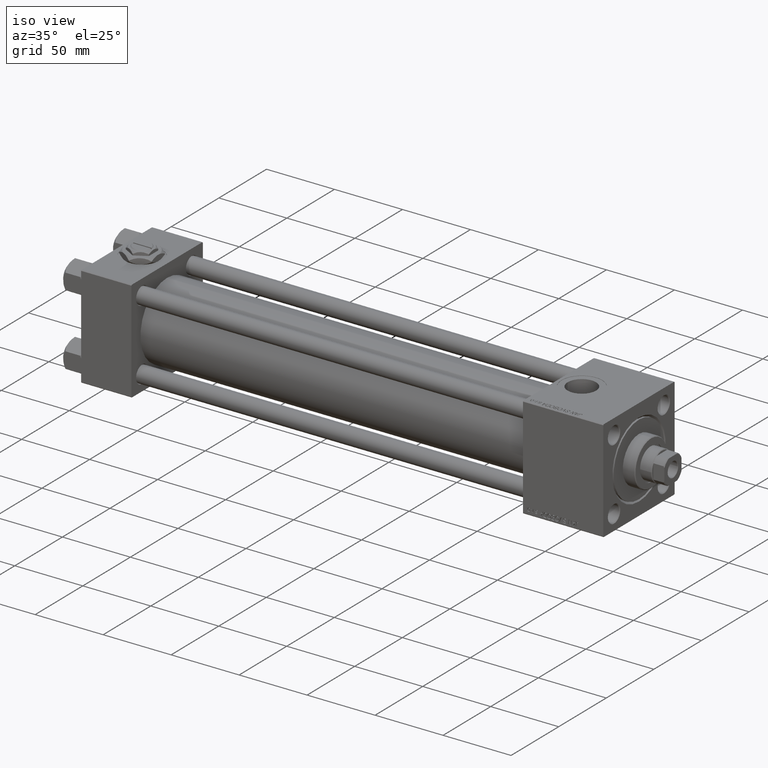
[diagram: clean part render]
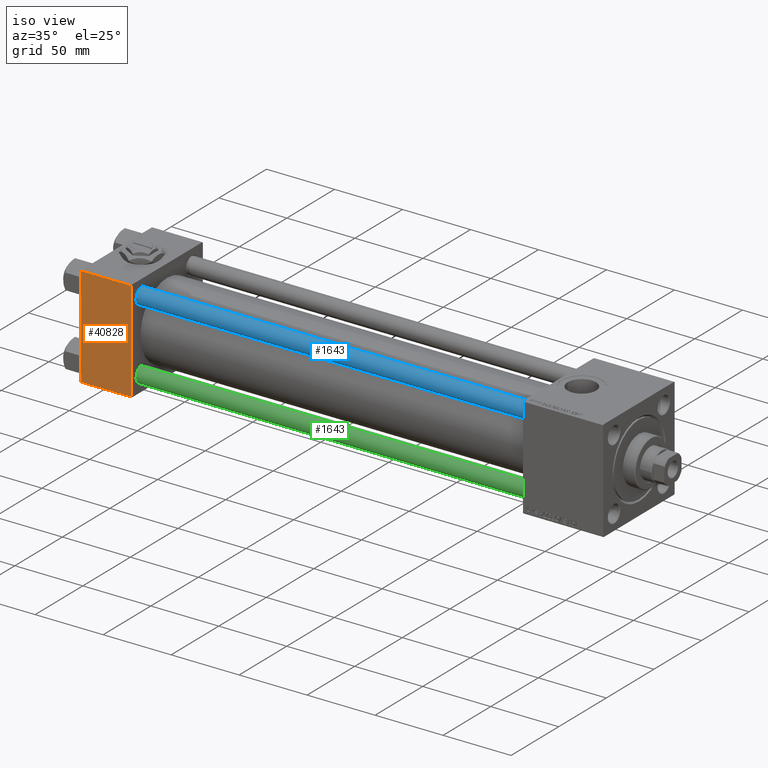
[diagram: same view with three faces highlighted in distinct colors, each labeled with its STEP entity id]
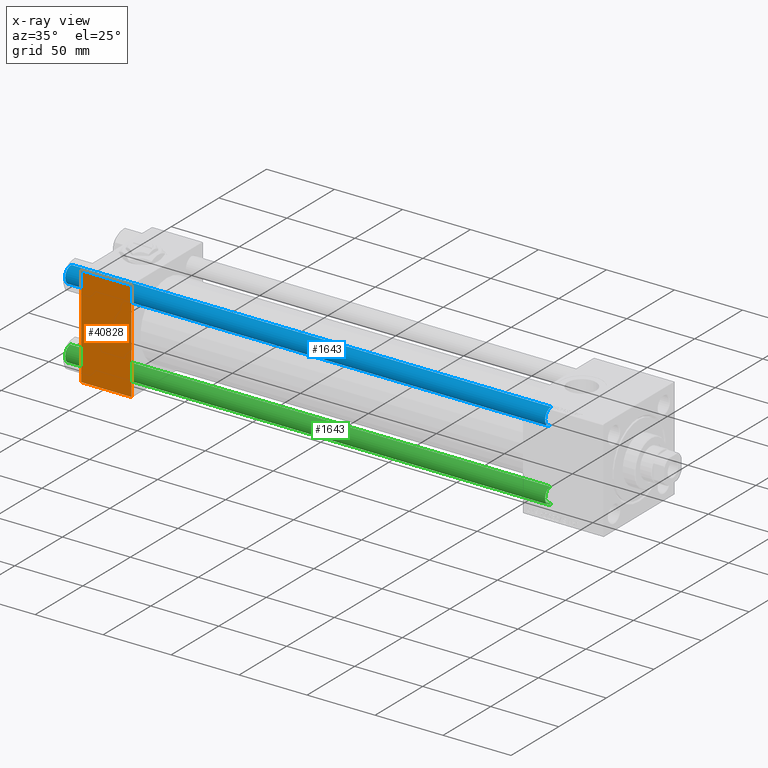
[diagram: x-ray of the same camera — body ghosted, the three highlighted faces saturated]
A machine part, iso view with three faces highlighted in distinct colors.
The next image is the same camera in x-ray (body ghosted, the three faces saturated) — at least one of them is partly hidden behind the body in this view.
Their STEP definitions:

[orange] entity #40828 — the highlighted planar face has unit normal (0, 1, 0).
#1553 = EDGE_CURVE ( 'NONE', #22380, #40141, #11570, .T. ) ;
#2121 = EDGE_CURVE ( 'NONE', #32653, #40141, #35903, .T. ) ;
#3422 = DIRECTION ( 'NONE',  ( -0.000000000000000000, 1.000000000000000000, 9.251858538542971581E-17 ) ) ;
#7612 = DIRECTION ( 'NONE',  ( 0.000000000000000000, 9.251858538542971581E-17, -1.000000000000000000 ) ) ;
#11570 = LINE ( 'NONE', #27673, #45653 ) ;
#11609 = CARTESIAN_POINT ( 'NONE',  ( 37.00000000000000000, -37.50000000000000000, -37.00000000000003553 ) ) ;
#12839 = ORIENTED_EDGE ( 'NONE', *, *, #40832, .T. ) ;
#15847 = LINE ( 'NONE', #24275, #32322 ) ;
#16777 = CARTESIAN_POINT ( 'NONE',  ( 0.000000000000000000, -37.50000000000000000, -37.00000000000003553 ) ) ;
#17238 = ORIENTED_EDGE ( 'NONE', *, *, #1553, .F. ) ;
#20493 = AXIS2_PLACEMENT_3D ( 'NONE', #47544, #3422, #35405 ) ;
#22380 = VERTEX_POINT ( 'NONE', #32462 ) ;
#22686 = EDGE_CURVE ( 'NONE', #47185, #32653, #28291, .T. ) ;
#24275 = CARTESIAN_POINT ( 'NONE',  ( 37.00000000000000000, -37.50000000000000711, 36.99999999999999289 ) ) ;
#24953 = VECTOR ( 'NONE', #27714, 1000.000000000000000 ) ;
#25157 = ORIENTED_EDGE ( 'NONE', *, *, #2121, .T. ) ;
#26512 = CARTESIAN_POINT ( 'NONE',  ( 37.00000000000000000, -37.50000000000000000, -37.00000000000003553 ) ) ;
#27673 = CARTESIAN_POINT ( 'NONE',  ( 37.00000000000000000, -37.50000000000000711, 37.49999999999999289 ) ) ;
#27714 = DIRECTION ( 'NONE',  ( 1.000000000000000000, 0.000000000000000000, 0.000000000000000000 ) ) ;
#27727 = PLANE ( 'NONE',  #20493 ) ;
#28291 = LINE ( 'NONE', #31743, #30262 ) ;
#30209 = EDGE_LOOP ( 'NONE', ( #49419, #25157, #17238, #12839 ) ) ;
#30262 = VECTOR ( 'NONE', #48113, 1000.000000000000000 ) ;
#31743 = CARTESIAN_POINT ( 'NONE',  ( 0.000000000000000000, -37.50000000000000711, 37.49999999999999289 ) ) ;
#31965 = DIRECTION ( 'NONE',  ( -1.000000000000000000, 0.000000000000000000, 0.000000000000000000 ) ) ;
#32322 = VECTOR ( 'NONE', #31965, 1000.000000000000000 ) ;
#32462 = CARTESIAN_POINT ( 'NONE',  ( 37.00000000000000000, -37.50000000000000711, 36.99999999999999289 ) ) ;
#32653 = VERTEX_POINT ( 'NONE', #16777 ) ;
#35405 = DIRECTION ( 'NONE',  ( 0.000000000000000000, -9.251858538542971581E-17, 1.000000000000000000 ) ) ;
#35903 = LINE ( 'NONE', #11609, #24953 ) ;
#39625 = FACE_OUTER_BOUND ( 'NONE', #30209, .T. ) ;
#40141 = VERTEX_POINT ( 'NONE', #26512 ) ;
#40828 = ADVANCED_FACE ( 'NONE', ( #39625 ), #27727, .F. ) ;
#40832 = EDGE_CURVE ( 'NONE', #22380, #47185, #15847, .T. ) ;
#44007 = CARTESIAN_POINT ( 'NONE',  ( 0.000000000000000000, -37.50000000000000711, 36.99999999999999289 ) ) ;
#45653 = VECTOR ( 'NONE', #7612, 1000.000000000000000 ) ;
#47185 = VERTEX_POINT ( 'NONE', #44007 ) ;
#47544 = CARTESIAN_POINT ( 'NONE',  ( 37.00000000000000000, -37.50000000000000711, 37.49999999999999289 ) ) ;
#48113 = DIRECTION ( 'NONE',  ( 0.000000000000000000, 9.251858538542971581E-17, -1.000000000000000000 ) ) ;
#49419 = ORIENTED_EDGE ( 'NONE', *, *, #22686, .T. ) ;

[blue] entity #1643 — the highlighted cylindrical surface (edge-blend (fillet) strip) has radius 6 mm, axis along (1, 0, -0).
#719 = FACE_OUTER_BOUND ( 'NONE', #51264, .T. ) ;
#1643 = ADVANCED_FACE ( 'NONE', ( #719 ), #49326, .T. ) ;
#1837 = VERTEX_POINT ( 'NONE', #5107 ) ;
#3587 = VERTEX_POINT ( 'NONE', #50555 ) ;
#5097 = ORIENTED_EDGE ( 'NONE', *, *, #22629, .T. ) ;
#5107 = CARTESIAN_POINT ( 'NONE',  ( 6.000000000000000888, 7.347880794884120722E-16, 0.5000000000000559552 ) ) ;
#5781 = CIRCLE ( 'NONE', #12531, 6.000000000000000888 ) ;
#7557 = VECTOR ( 'NONE', #15124, 1000.000000000000000 ) ;
#7670 = VECTOR ( 'NONE', #11720, 1000.000000000000000 ) ;
#8394 = DIRECTION ( 'NONE',  ( -1.000000000000000000, 0.000000000000000000, 0.000000000000000000 ) ) ;
#11720 = DIRECTION ( 'NONE',  ( -0.000000000000000000, -0.000000000000000000, -1.000000000000000000 ) ) ;
#11782 = CARTESIAN_POINT ( 'NONE',  ( -6.000000000000000888, 0.000000000000000000, 0.5000000000000559552 ) ) ;
#12088 = EDGE_CURVE ( 'NONE', #3587, #48065, #27379, .T. ) ;
#12365 = VERTEX_POINT ( 'NONE', #11782 ) ;
#12531 = AXIS2_PLACEMENT_3D ( 'NONE', #34419, #22758, #50532 ) ;
#13936 = DIRECTION ( 'NONE',  ( 1.000000000000000000, 0.000000000000000000, 0.000000000000000000 ) ) ;
#14425 = ORIENTED_EDGE ( 'NONE', *, *, #30551, .T. ) ;
#15124 = DIRECTION ( 'NONE',  ( -0.000000000000000000, -0.000000000000000000, -1.000000000000000000 ) ) ;
#16569 = DIRECTION ( 'NONE',  ( -0.000000000000000000, -0.000000000000000000, -1.000000000000000000 ) ) ;
#18556 = LINE ( 'NONE', #26493, #7557 ) ;
#19071 = ORIENTED_EDGE ( 'NONE', *, *, #12088, .T. ) ;
#22629 = EDGE_CURVE ( 'NONE', #1837, #12365, #5781, .T. ) ;
#22758 = DIRECTION ( 'NONE',  ( -0.000000000000000000, -0.000000000000000000, 1.000000000000000000 ) ) ;
#22813 = LINE ( 'NONE', #34991, #7670 ) ;
#22855 = AXIS2_PLACEMENT_3D ( 'NONE', #25012, #16569, #8394 ) ;
#24858 = AXIS2_PLACEMENT_3D ( 'NONE', #34011, #50123, #13936 ) ;
#25012 = CARTESIAN_POINT ( 'NONE',  ( 0.000000000000000000, 0.000000000000000000, 354.0000000000000000 ) ) ;
#26493 = CARTESIAN_POINT ( 'NONE',  ( -6.000000000000000888, 0.000000000000000000, 354.0000000000000000 ) ) ;
#27379 = CIRCLE ( 'NONE', #24858, 6.000000000000000888 ) ;
#27420 = EDGE_CURVE ( 'NONE', #3587, #12365, #18556, .T. ) ;
#30551 = EDGE_CURVE ( 'NONE', #48065, #1837, #22813, .T. ) ;
#34011 = CARTESIAN_POINT ( 'NONE',  ( 0.000000000000000000, 0.000000000000000000, 353.5000000000000000 ) ) ;
#34419 = CARTESIAN_POINT ( 'NONE',  ( 0.000000000000000000, 0.000000000000000000, 0.5000000000000559552 ) ) ;
#34991 = CARTESIAN_POINT ( 'NONE',  ( 6.000000000000000888, 7.347880794884120722E-16, 354.0000000000000000 ) ) ;
#38564 = ORIENTED_EDGE ( 'NONE', *, *, #27420, .F. ) ;
#40052 = CARTESIAN_POINT ( 'NONE',  ( 6.000000000000000888, 7.347880794884120722E-16, 353.5000000000000000 ) ) ;
#48065 = VERTEX_POINT ( 'NONE', #40052 ) ;
#49326 = CYLINDRICAL_SURFACE ( 'NONE', #22855, 6.000000000000000888 ) ;
#50123 = DIRECTION ( 'NONE',  ( 0.000000000000000000, 0.000000000000000000, -1.000000000000000000 ) ) ;
#50532 = DIRECTION ( 'NONE',  ( 1.000000000000000000, 0.000000000000000000, 0.000000000000000000 ) ) ;
#50555 = CARTESIAN_POINT ( 'NONE',  ( -6.000000000000000888, 0.000000000000000000, 353.5000000000000000 ) ) ;
#51264 = EDGE_LOOP ( 'NONE', ( #19071, #14425, #5097, #38564 ) ) ;

[green] entity #1643 — the highlighted cylindrical surface (edge-blend (fillet) strip) has radius 6 mm, axis along (-1, -0, -0).
#719 = FACE_OUTER_BOUND ( 'NONE', #51264, .T. ) ;
#1643 = ADVANCED_FACE ( 'NONE', ( #719 ), #49326, .T. ) ;
#1837 = VERTEX_POINT ( 'NONE', #5107 ) ;
#3587 = VERTEX_POINT ( 'NONE', #50555 ) ;
#5097 = ORIENTED_EDGE ( 'NONE', *, *, #22629, .T. ) ;
#5107 = CARTESIAN_POINT ( 'NONE',  ( 6.000000000000000888, 7.347880794884120722E-16, 0.5000000000000559552 ) ) ;
#5781 = CIRCLE ( 'NONE', #12531, 6.000000000000000888 ) ;
#7557 = VECTOR ( 'NONE', #15124, 1000.000000000000000 ) ;
#7670 = VECTOR ( 'NONE', #11720, 1000.000000000000000 ) ;
#8394 = DIRECTION ( 'NONE',  ( -1.000000000000000000, 0.000000000000000000, 0.000000000000000000 ) ) ;
#11720 = DIRECTION ( 'NONE',  ( -0.000000000000000000, -0.000000000000000000, -1.000000000000000000 ) ) ;
#11782 = CARTESIAN_POINT ( 'NONE',  ( -6.000000000000000888, 0.000000000000000000, 0.5000000000000559552 ) ) ;
#12088 = EDGE_CURVE ( 'NONE', #3587, #48065, #27379, .T. ) ;
#12365 = VERTEX_POINT ( 'NONE', #11782 ) ;
#12531 = AXIS2_PLACEMENT_3D ( 'NONE', #34419, #22758, #50532 ) ;
#13936 = DIRECTION ( 'NONE',  ( 1.000000000000000000, 0.000000000000000000, 0.000000000000000000 ) ) ;
#14425 = ORIENTED_EDGE ( 'NONE', *, *, #30551, .T. ) ;
#15124 = DIRECTION ( 'NONE',  ( -0.000000000000000000, -0.000000000000000000, -1.000000000000000000 ) ) ;
#16569 = DIRECTION ( 'NONE',  ( -0.000000000000000000, -0.000000000000000000, -1.000000000000000000 ) ) ;
#18556 = LINE ( 'NONE', #26493, #7557 ) ;
#19071 = ORIENTED_EDGE ( 'NONE', *, *, #12088, .T. ) ;
#22629 = EDGE_CURVE ( 'NONE', #1837, #12365, #5781, .T. ) ;
#22758 = DIRECTION ( 'NONE',  ( -0.000000000000000000, -0.000000000000000000, 1.000000000000000000 ) ) ;
#22813 = LINE ( 'NONE', #34991, #7670 ) ;
#22855 = AXIS2_PLACEMENT_3D ( 'NONE', #25012, #16569, #8394 ) ;
#24858 = AXIS2_PLACEMENT_3D ( 'NONE', #34011, #50123, #13936 ) ;
#25012 = CARTESIAN_POINT ( 'NONE',  ( 0.000000000000000000, 0.000000000000000000, 354.0000000000000000 ) ) ;
#26493 = CARTESIAN_POINT ( 'NONE',  ( -6.000000000000000888, 0.000000000000000000, 354.0000000000000000 ) ) ;
#27379 = CIRCLE ( 'NONE', #24858, 6.000000000000000888 ) ;
#27420 = EDGE_CURVE ( 'NONE', #3587, #12365, #18556, .T. ) ;
#30551 = EDGE_CURVE ( 'NONE', #48065, #1837, #22813, .T. ) ;
#34011 = CARTESIAN_POINT ( 'NONE',  ( 0.000000000000000000, 0.000000000000000000, 353.5000000000000000 ) ) ;
#34419 = CARTESIAN_POINT ( 'NONE',  ( 0.000000000000000000, 0.000000000000000000, 0.5000000000000559552 ) ) ;
#34991 = CARTESIAN_POINT ( 'NONE',  ( 6.000000000000000888, 7.347880794884120722E-16, 354.0000000000000000 ) ) ;
#38564 = ORIENTED_EDGE ( 'NONE', *, *, #27420, .F. ) ;
#40052 = CARTESIAN_POINT ( 'NONE',  ( 6.000000000000000888, 7.347880794884120722E-16, 353.5000000000000000 ) ) ;
#48065 = VERTEX_POINT ( 'NONE', #40052 ) ;
#49326 = CYLINDRICAL_SURFACE ( 'NONE', #22855, 6.000000000000000888 ) ;
#50123 = DIRECTION ( 'NONE',  ( 0.000000000000000000, 0.000000000000000000, -1.000000000000000000 ) ) ;
#50532 = DIRECTION ( 'NONE',  ( 1.000000000000000000, 0.000000000000000000, 0.000000000000000000 ) ) ;
#50555 = CARTESIAN_POINT ( 'NONE',  ( -6.000000000000000888, 0.000000000000000000, 353.5000000000000000 ) ) ;
#51264 = EDGE_LOOP ( 'NONE', ( #19071, #14425, #5097, #38564 ) ) ;